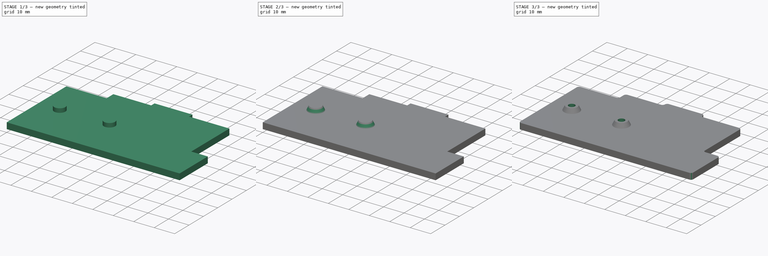
[diagram: build sequence overview — one tinted view per stage of 3, left to right]
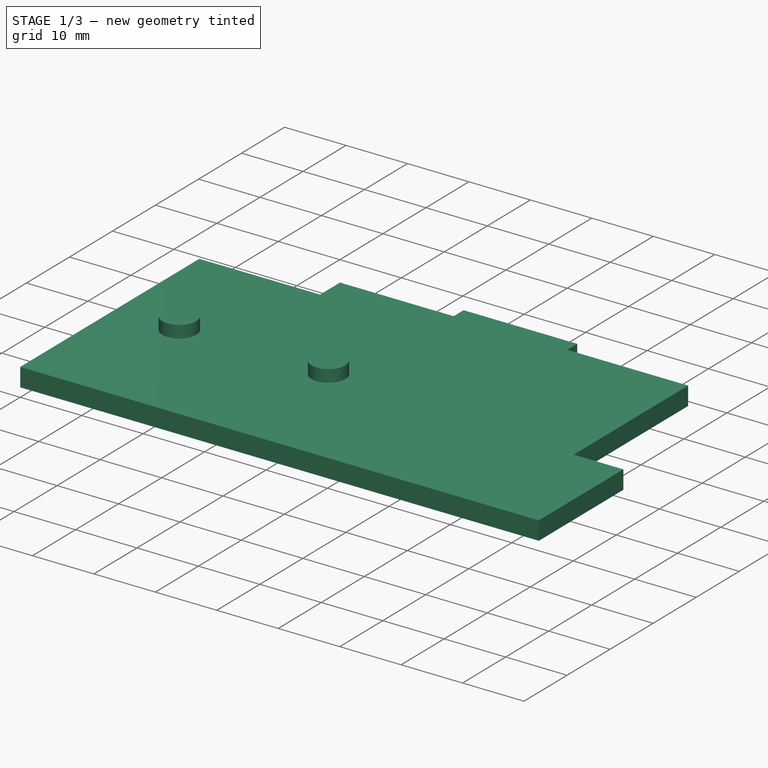
[diagram: stage 1 of 3 — iso view after this stage's code; geometry added in this stage tinted green]
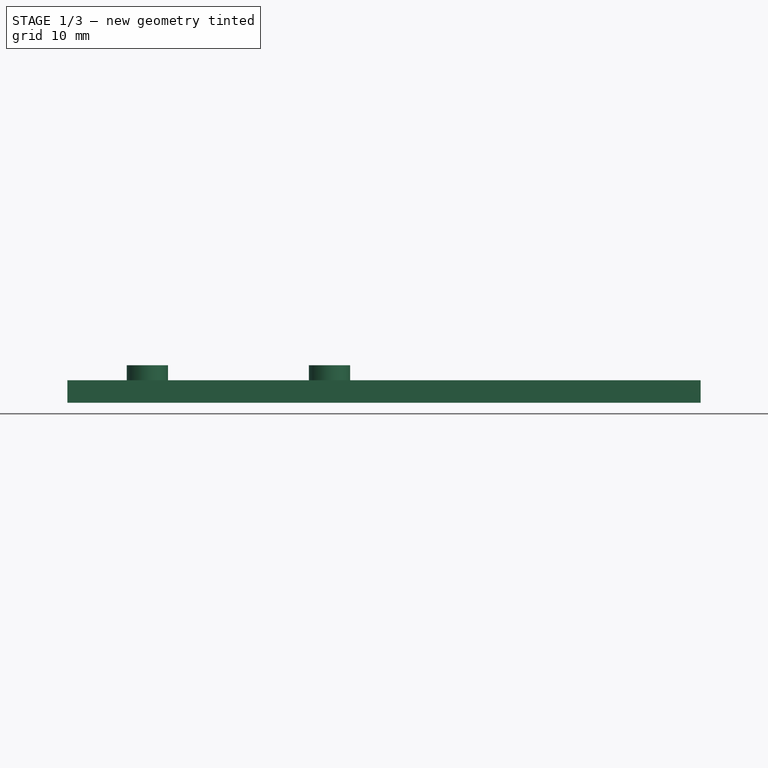
[diagram: stage 1 of 3 — front view after this stage's code; geometry added in this stage tinted green]
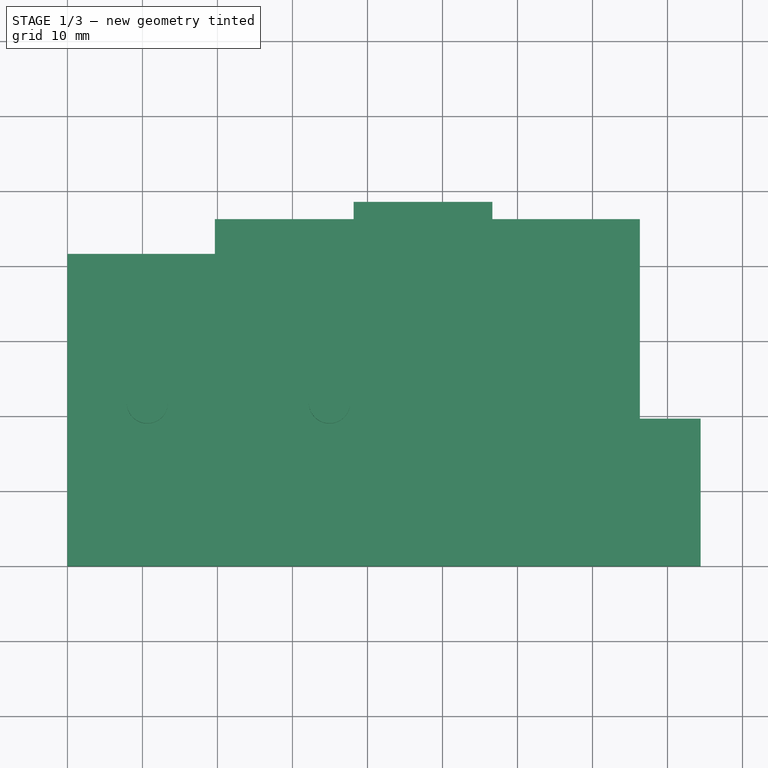
[diagram: stage 1 of 3 — top view after this stage's code; geometry added in this stage tinted green]
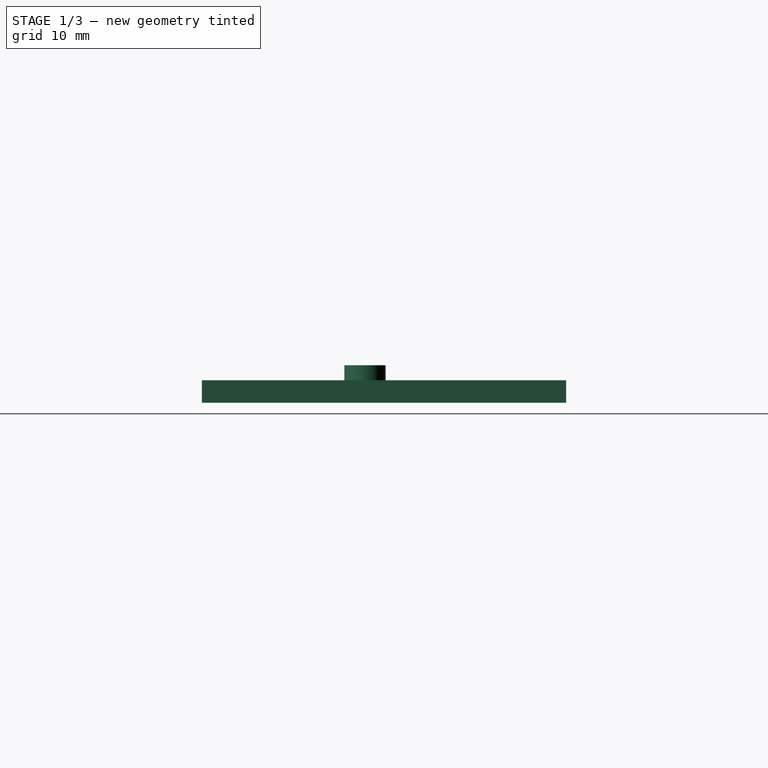
[diagram: stage 1 of 3 — right view after this stage's code; geometry added in this stage tinted green]
FCSTD DOCUMENT  (FreeCAD 0.19R)
Label: Comb03xD
License: All rights reserved
LicenseURL: http://en.wikipedia.org/wiki/All_rights_reserved
objects: Sketcher::SketchObject×3, PartDesign::Pad×2, PartDesign::Chamfer×1, PartDesign::Pocket×1, PartDesign::Fillet×1, PartDesign::Body×1
note: 14 computed .brp shape members not serialized (recipe doc carries the construction recipe); baked Part::Feature solids carry a one-line shape summary decoded from their .brp

FEATURE [Sketcher::SketchObject] Sketch
  FullyConstrained = true
  MapMode = 5
  Support = -> [XY_Plane]
  sketch-geometry (12):
    g0: LineSegment StartX=0 StartY=0 StartZ=0 EndX=0 EndY=41.625 EndZ=0
    g1: LineSegment StartX=0 StartY=41.625 StartZ=0 EndX=19.656 EndY=41.625 EndZ=0
    g2: LineSegment StartX=19.656 StartY=41.625 StartZ=0 EndX=19.656 EndY=46.25 EndZ=0
    g3: LineSegment StartX=19.656 StartY=46.25 StartZ=0 EndX=38.156 EndY=46.25 EndZ=0
    g4: LineSegment StartX=38.156 StartY=46.25 StartZ=0 EndX=38.156 EndY=48.563 EndZ=0
    g5: LineSegment StartX=38.156 StartY=48.563 StartZ=0 EndX=56.656 EndY=48.563 EndZ=0
    g6: LineSegment StartX=56.656 StartY=48.563 StartZ=0 EndX=56.656 EndY=46.25 EndZ=0
    g7: LineSegment StartX=56.656 StartY=46.25 StartZ=0 EndX=76.312 EndY=46.25 EndZ=0
    g8: LineSegment StartX=76.312 StartY=46.25 StartZ=0 EndX=76.312 EndY=19.656 EndZ=0
    g9: LineSegment StartX=76.312 StartY=19.656 StartZ=0 EndX=84.406 EndY=19.656 EndZ=0
    g10: LineSegment StartX=84.406 StartY=19.656 StartZ=0 EndX=84.406 EndY=0 EndZ=0
    g11: LineSegment StartX=84.406 StartY=0 StartZ=0 EndX=0 EndY=0 EndZ=0
  constraints (35):
    c: Coincident(g0,g-1)
    c: Coincident(g1,g0)
    c: Horizontal(g1)
    c: Coincident(g2,g1)
    c: Coincident(g3,g2)
    c: Horizontal(g3)
    c: Coincident(g4,g3)
    c: Vertical(g4)
    c: Coincident(g5,g4)
    c: Horizontal(g5)
    c: Coincident(g6,g5)
    c: Coincident(g7,g6)
    c: Horizontal(g7)
    c: Coincident(g8,g7)
    c: Vertical(g8)
    c: Coincident(g9,g8)
    c: Coincident(g10,g9)
    c: Coincident(g11,g10)
    c: Coincident(g11,g0)
    c: Horizontal(g11)
    c: Vertical(g10)
    c: Horizontal(g9)
    c: Vertical(g2)
    c: Vertical(g6)
    c: Vertical(g0)
    c: DistanceX(g11,g11) = 84.406
    c: Equal(g10,g1)
    c: Equal(g1,g7)
    c: Equal(g3,g5)
    c: DistanceX(g3,g3) = 18.5
    c: DistanceX(g1,g1) = 19.656
    c: DistanceY(g8,g8) = 26.594
    c: Equal(g4,g6)
    c: DistanceY(g2,g2) = 4.625
    c: DistanceY(g6,g6) = 2.313
FEATURE [PartDesign::Pad] Pad
  Direction = (1,1,1)
  Length = 3
  Length2 = 100
  Profile = -> Sketch
  Type = 0
FEATURE [Sketcher::SketchObject] Sketch001
  FullyConstrained = true
  MapMode = 5
  Placement = pos=(0,0,3) rot=(0,0,1;0rad)
  Support = -> [Pad]
  expr: Constraints[11] = 3.1 + 2.4
  sketch-geometry (5):
    g0: LineSegment StartX=0 StartY=0 StartZ=0 EndX=34.938 EndY=0 EndZ=0
    g1: LineSegment StartX=34.938 StartY=0 StartZ=0 EndX=34.938 EndY=21.75 EndZ=0
    g2: LineSegment StartX=34.938 StartY=21.75 StartZ=0 EndX=10.657 EndY=21.75 EndZ=0
    g3: Circle CenterX=10.657 CenterY=21.75 CenterZ=0 NormalX=0 NormalY=0 NormalZ=1 AngleXU=0 Radius=2.75
    g4: Circle CenterX=34.938 CenterY=21.75 CenterZ=0 NormalX=0 NormalY=0 NormalZ=1 AngleXU=0 Radius=2.75
  constraints (13):
    c: Coincident(g0,g-1)
    c: PointOnObject(g0,g-1)
    c: Coincident(g1,g0)
    c: Vertical(g1)
    c: Coincident(g2,g1)
    c: Horizontal(g2)
    c: DistanceX(g0,g0) = 34.938
    c: DistanceY(g1,g1) = 21.75
    c: DistanceX(g2,g2) = 24.281
    c: Coincident(g3,g2)
    c: Coincident(g4,g1)
    c: Diameter(g4) = 5.5
    c: Equal(g3,g4)
FEATURE [PartDesign::Pad] Pad001
  BaseFeature = -> Pad
  Direction = (1,1,1)
  Length = 2
  Length2 = 100
  Profile = -> Sketch001
  Type = 0
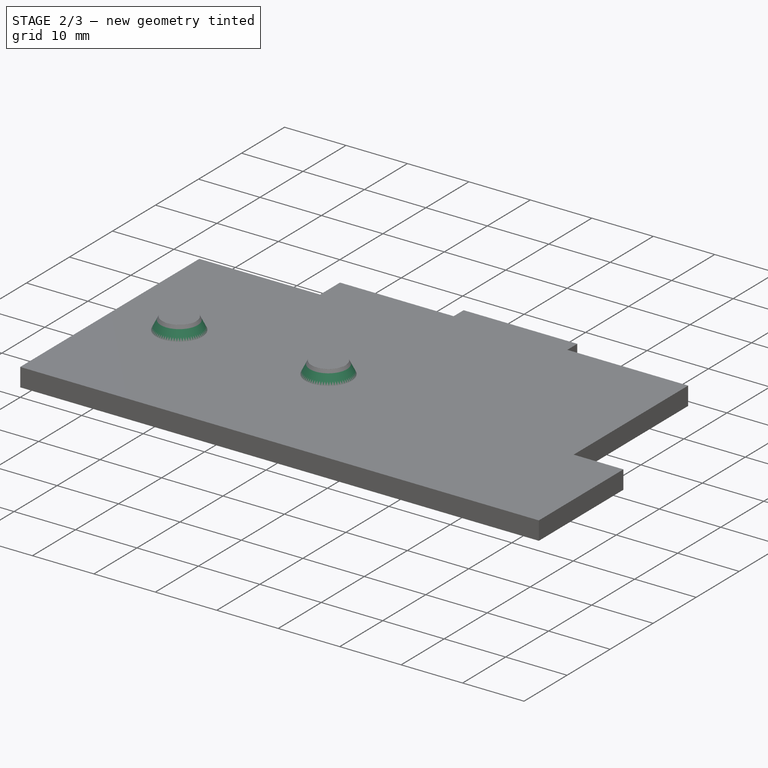
[diagram: stage 2 of 3 — iso view after this stage's code; geometry added in this stage tinted green]
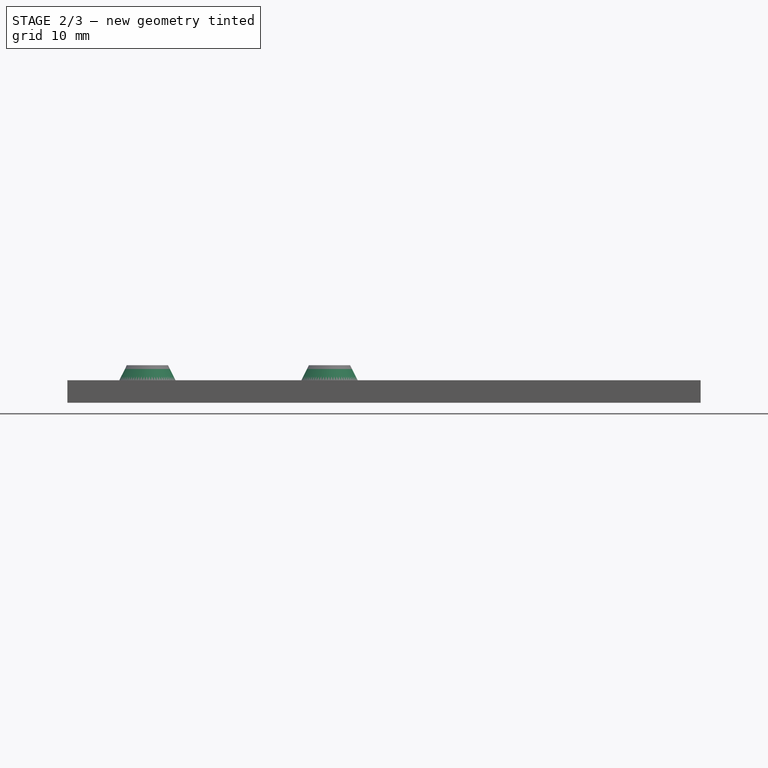
[diagram: stage 2 of 3 — front view after this stage's code; geometry added in this stage tinted green]
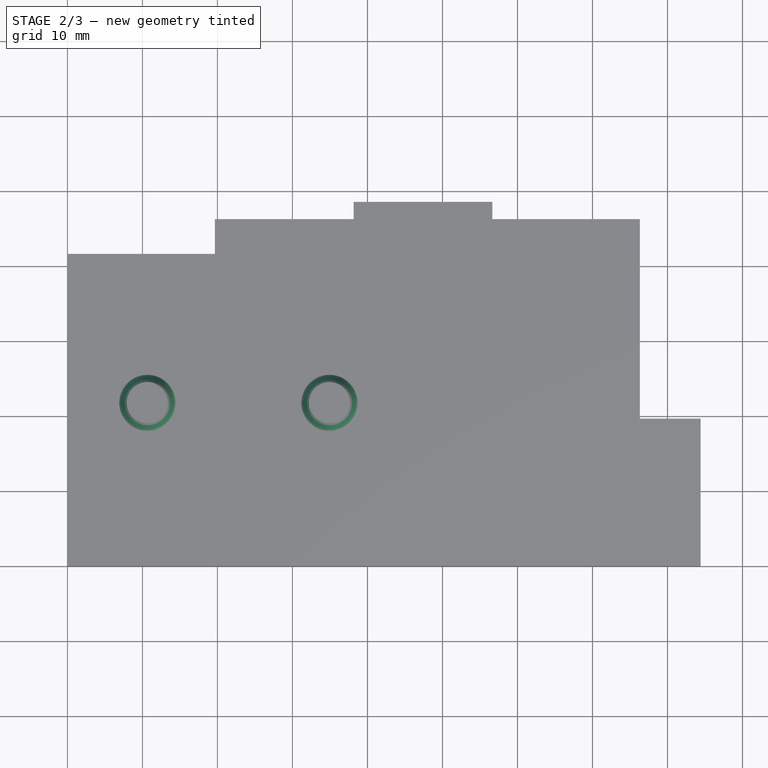
[diagram: stage 2 of 3 — top view after this stage's code; geometry added in this stage tinted green]
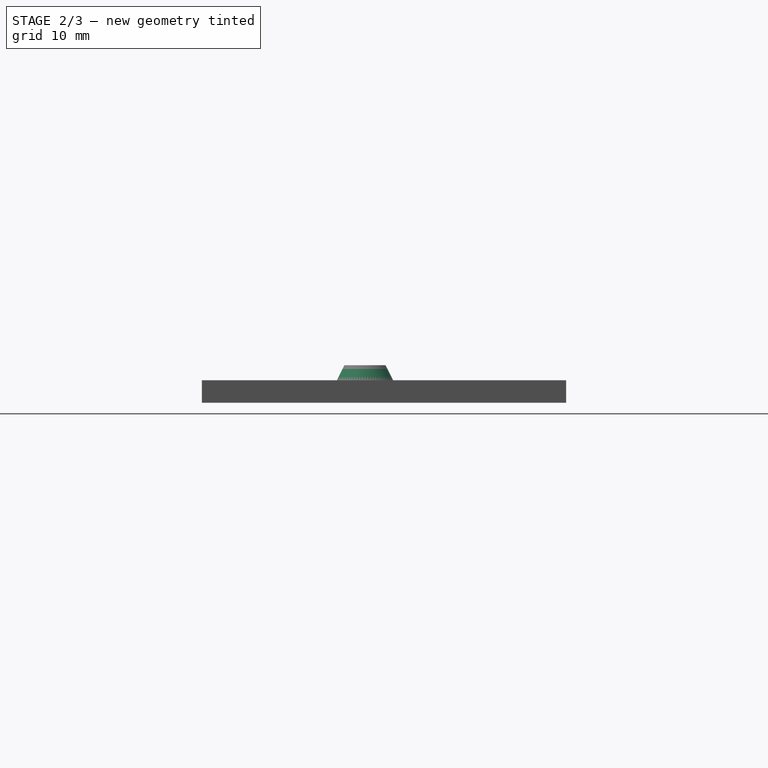
[diagram: stage 2 of 3 — right view after this stage's code; geometry added in this stage tinted green]
FEATURE [PartDesign::Chamfer] Chamfer
  Angle = 45
  Base = -> Pad001 [Edge30,Edge29]
  BaseFeature = -> Pad001
  ChamferType = 1
  FlipDirection = false
  Size = 1
  Size2 = 1.99
  SupportTransform = false
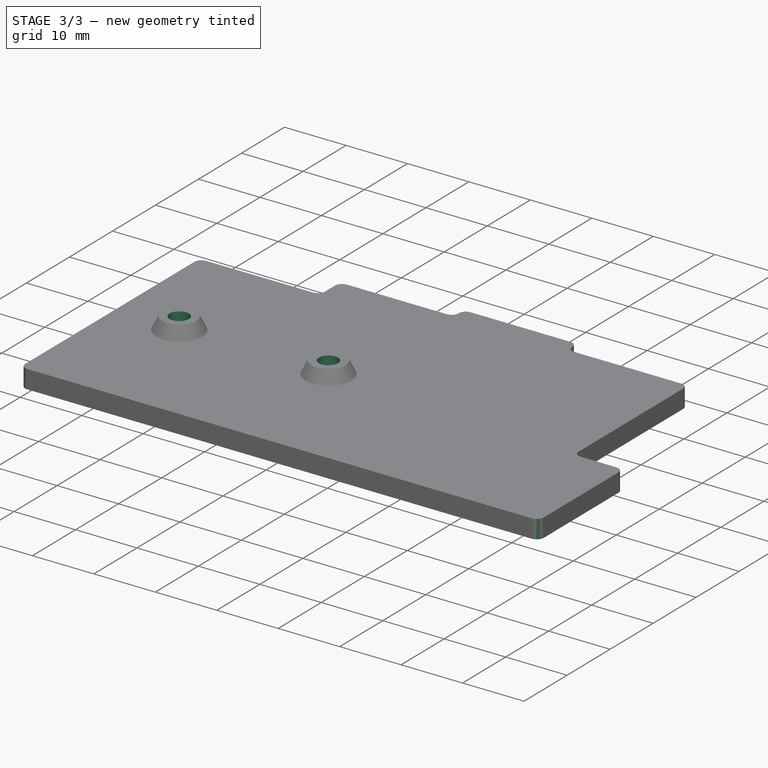
[diagram: stage 3 of 3 — iso view after this stage's code; geometry added in this stage tinted green]
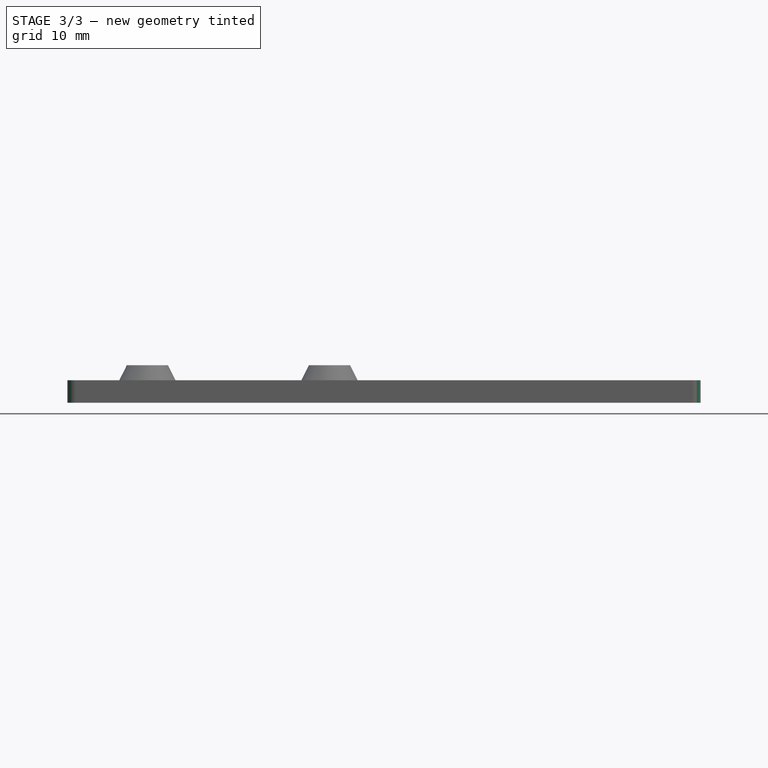
[diagram: stage 3 of 3 — front view after this stage's code; geometry added in this stage tinted green]
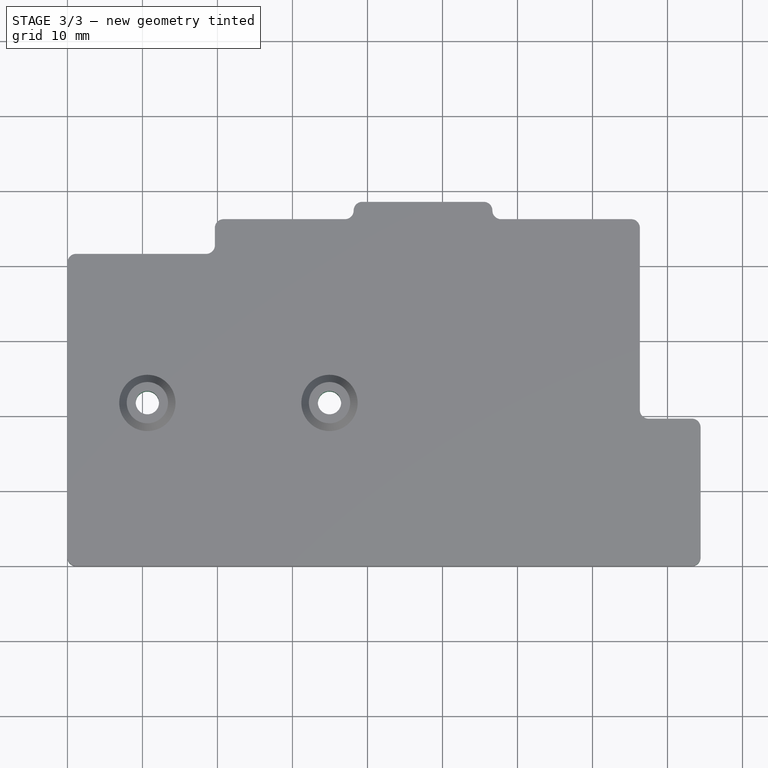
[diagram: stage 3 of 3 — top view after this stage's code; geometry added in this stage tinted green]
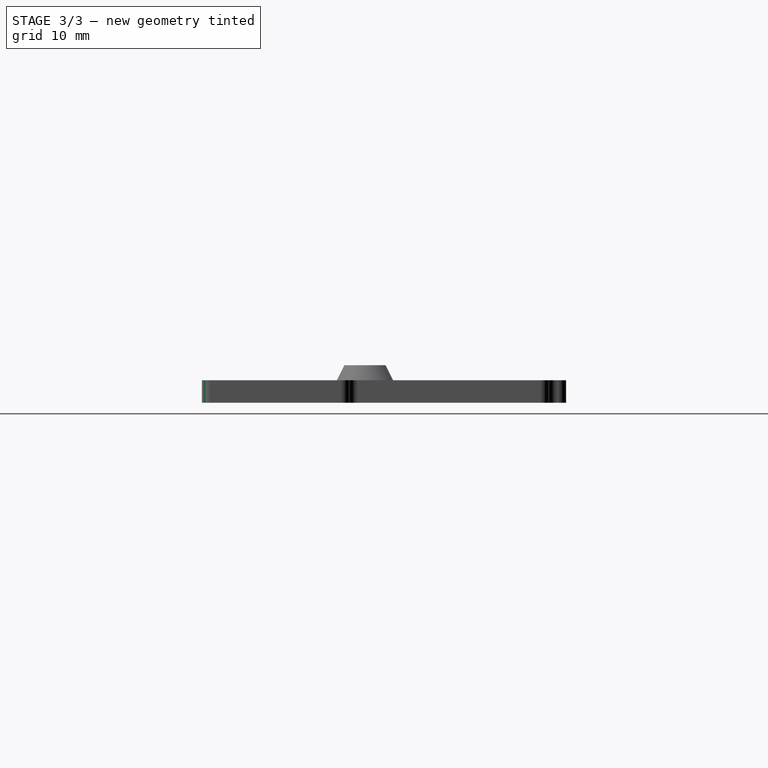
[diagram: stage 3 of 3 — right view after this stage's code; geometry added in this stage tinted green]
FEATURE [Sketcher::SketchObject] Sketch002
  ExternalGeometry = -> [Chamfer]
  FullyConstrained = true
  MapMode = 5
  Placement = pos=(0,0,5) rot=(0,0,1;0rad)
  Support = -> [Chamfer]
  sketch-geometry (2):
    g0: Circle CenterX=10.657 CenterY=21.75 CenterZ=0 NormalX=0 NormalY=0 NormalZ=1 AngleXU=0 Radius=1.55
    g1: Circle CenterX=34.938 CenterY=21.75 CenterZ=0 NormalX=0 NormalY=0 NormalZ=1 AngleXU=0 Radius=1.55
  constraints (4):
    c: Coincident(g0,g-3)
    c: Coincident(g1,g-4)
    c: Diameter(g1) = 3.1
    c: Equal(g0,g1)
FEATURE [PartDesign::Pocket] Pocket
  BaseFeature = -> Chamfer
  Length = 5
  Length2 = 100
  Profile = -> Sketch002
  Type = 0
FEATURE [PartDesign::Fillet] Fillet
  Base = -> Pocket [Edge20,Edge24,Edge28,Edge32,Edge36,Edge38,Edge34,Edge26,Edge18,Edge30,Edge22,Edge17]
  BaseFeature = -> Pocket
  Radius = 1.15625
  SupportTransform = false
  expr: Radius = 18.5 / 16
FEATURE [PartDesign::Body] Body
  Group = -> [Sketch,Pad,Sketch001,Pad001,Chamfer,Sketch002,Pocket,Fillet]
  Origin = -> Origin
  Tip = -> Fillet
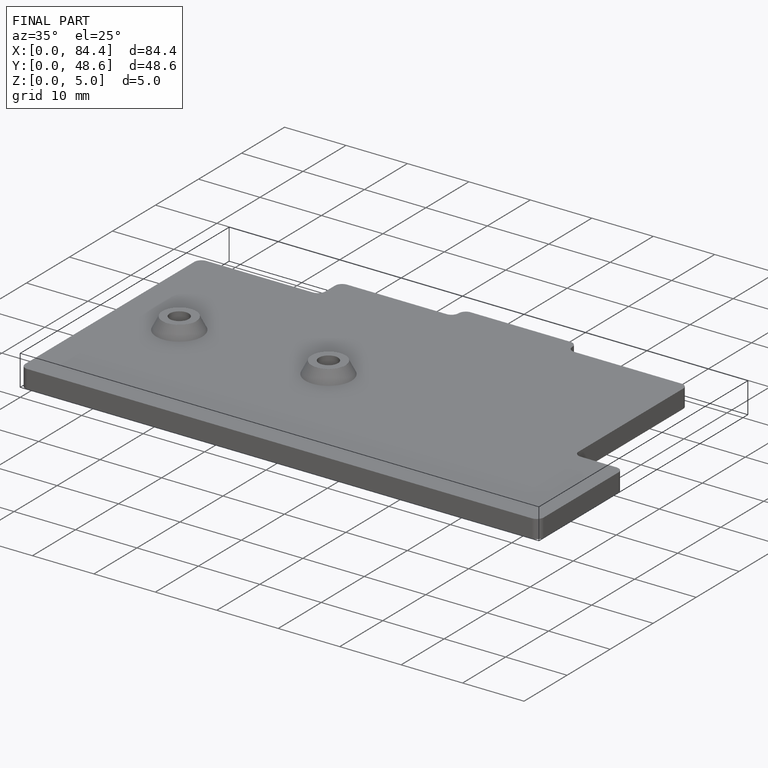
[diagram: finished part — iso view with bounding-box wireframe]
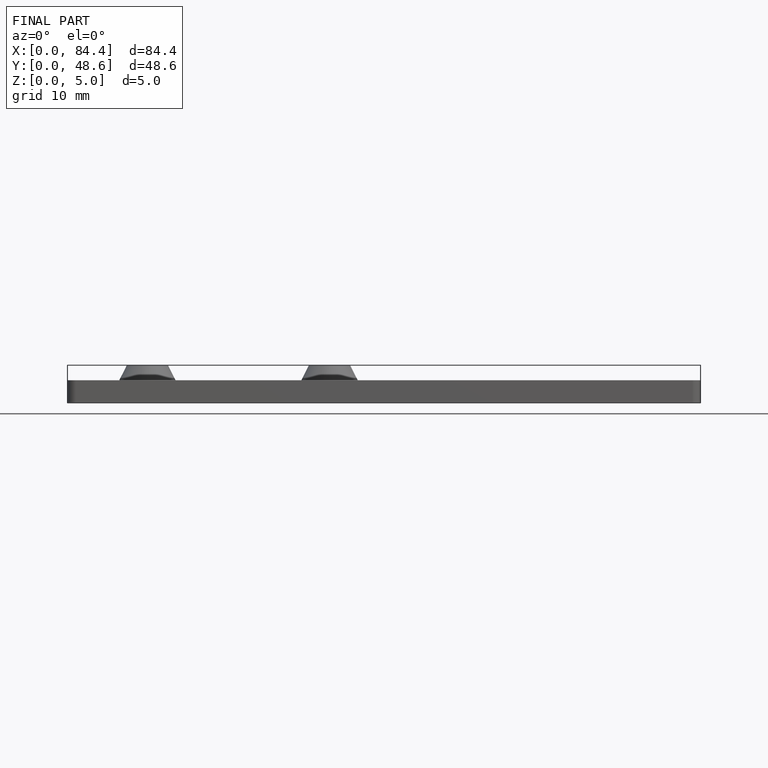
[diagram: finished part — front view with bounding-box wireframe]
